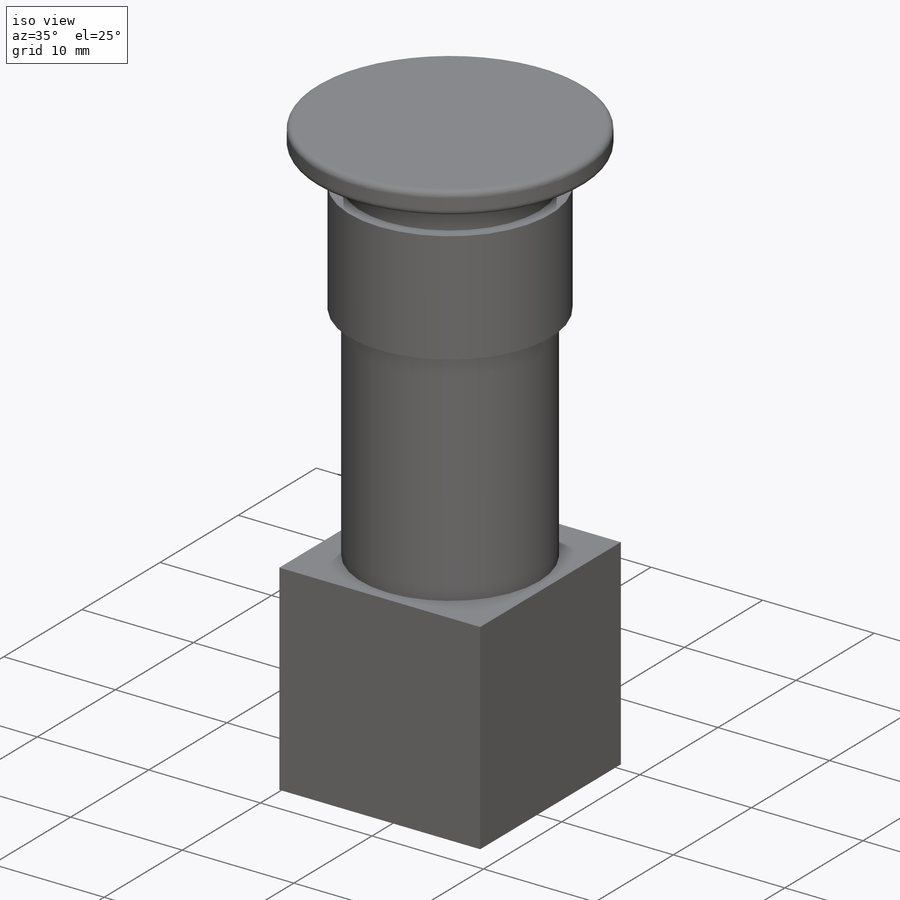
[diagram: iso view]
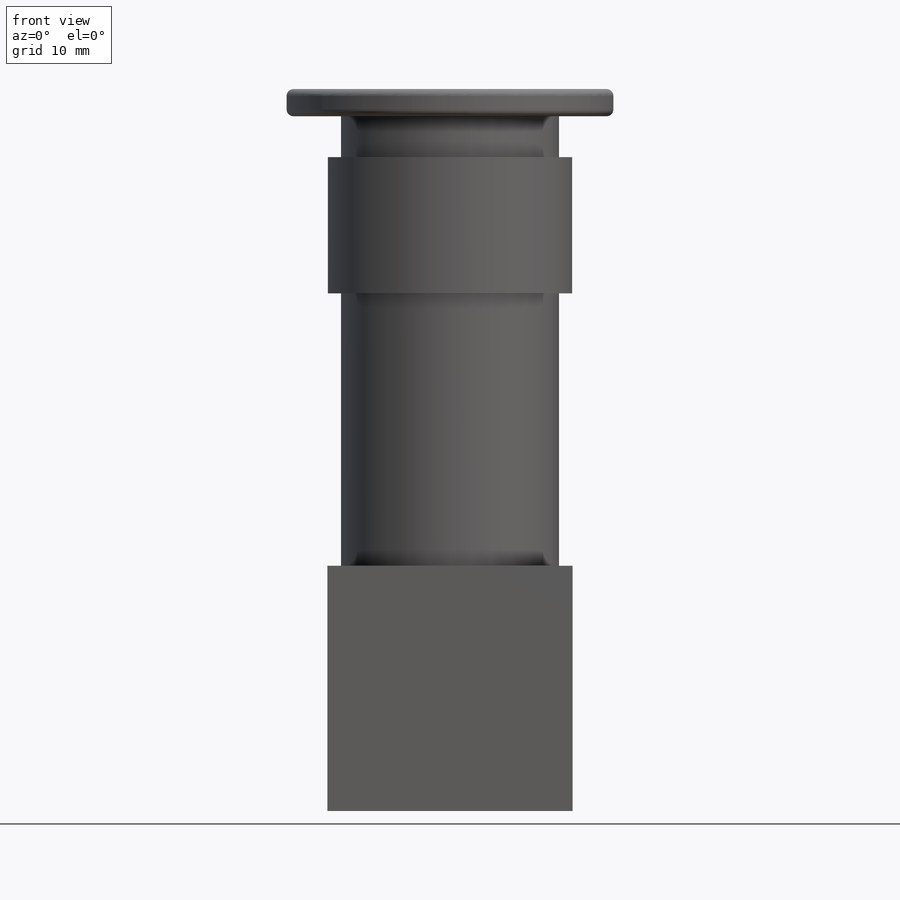
[diagram: front view]
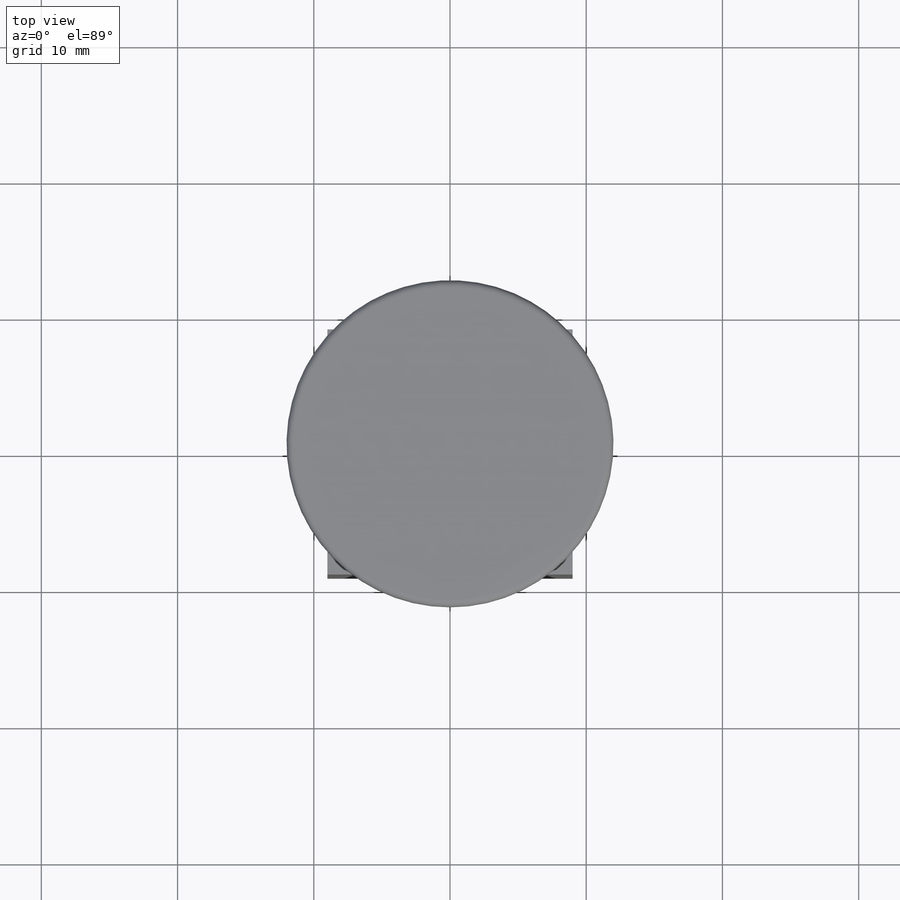
[diagram: top view]
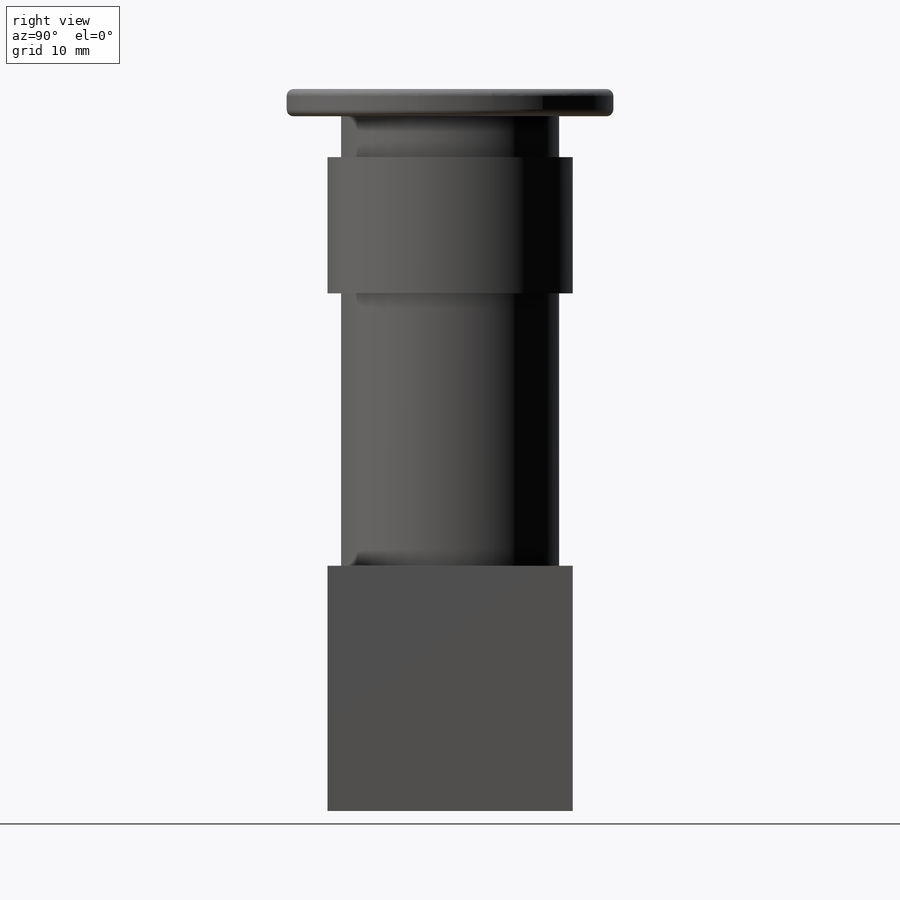
[diagram: right view]
SOLIDWORKS PART (.sldprt)
format: sldprt  version: not decoded by parser v0  size: 181,248 bytes
history: native  units: mm
features: sketch x5, extrude x5, plane x3, fillet x2, material x1 (+9 scaffold rows collapsed)
feature tree (25):
  scaffold x9  (default folders/planes/origin — collapsed)
  material  "Matériau <non spécifié>"
  plane  "Plan de face"
  plane  "Plan de dessus"
  plane  "Plan de droite"
  sketch  "Esquisse1"  dims[c1.D1=~5.380055mm c1.D2=~4.099089mm c2.D1=18.0mm c2.D2=18.0mm c2.D3=9.0mm c2.D4=9.0mm]
  extrude  "Boss.-Extru.1"  Depth=18mm
  sketch  "Esquisse2"  dims[D1=16.0mm]
  extrude  "Boss.-Extru.2"  Depth=20mm
  sketch  "Esquisse3"  dims[D1=18.0mm]
  extrude  "Boss.-Extru.3"  Depth=10mm
  sketch  "Esquisse4"  dims[D1=16.0mm]
  extrude  "Boss.-Extru.4"  Depth=3mm
  sketch  "Esquisse5"  dims[D1=24.0mm]
  extrude  "Boss.-Extru.5"  Depth=2mm
  fillet  "Congé1"  Radius=0.5mm
  fillet  "Congé2"  Radius=0.5mm
decode coverage: 12 of 12 modeling features carry decoded parameters
note: ~ marks probable driven/reference dimensions
note: suppression state not decoded; provenance and decode notes live in map.json
